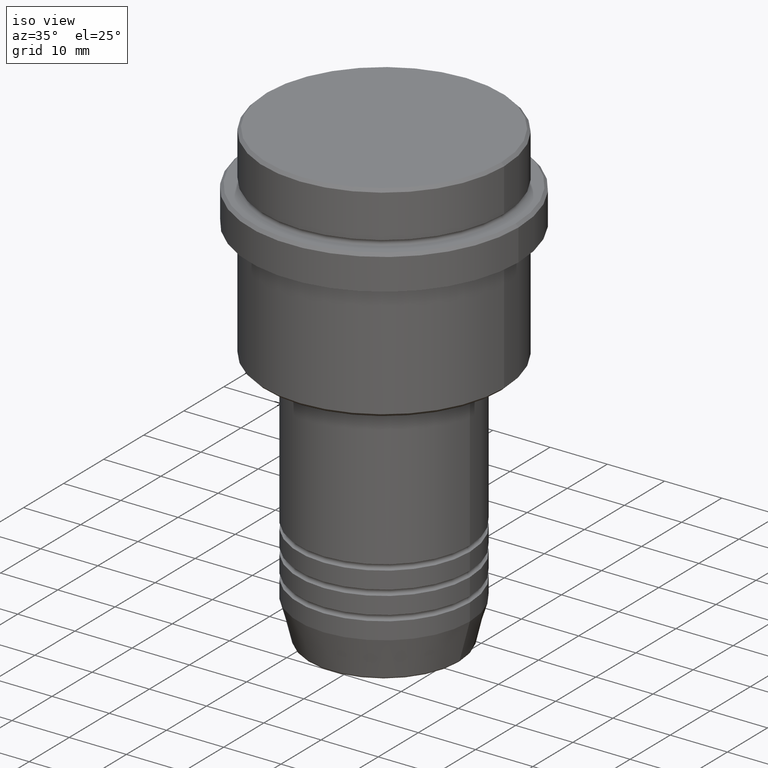
[diagram: clean part render]
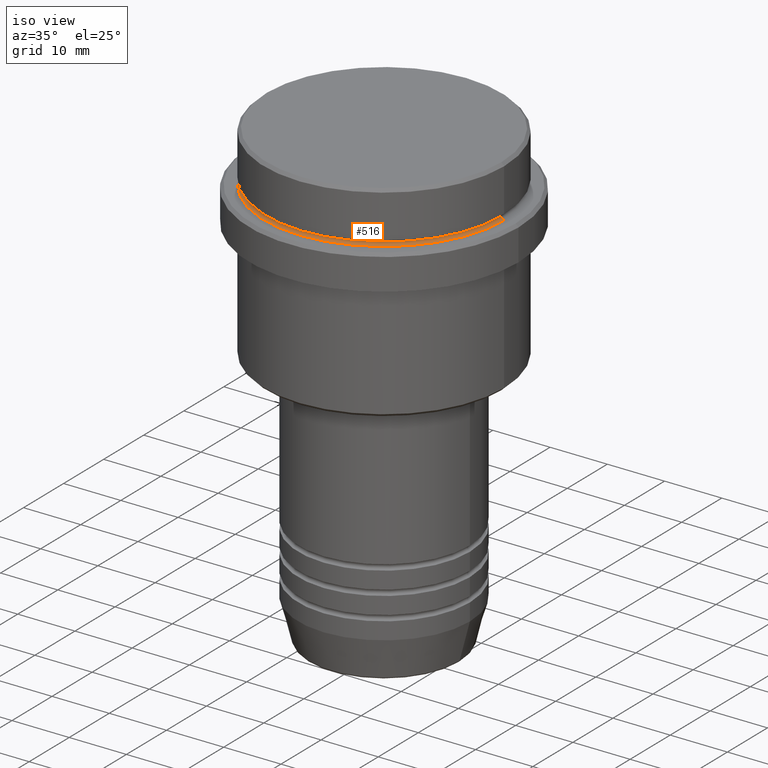
[diagram: same view with one face highlighted and labeled with its STEP entity id]
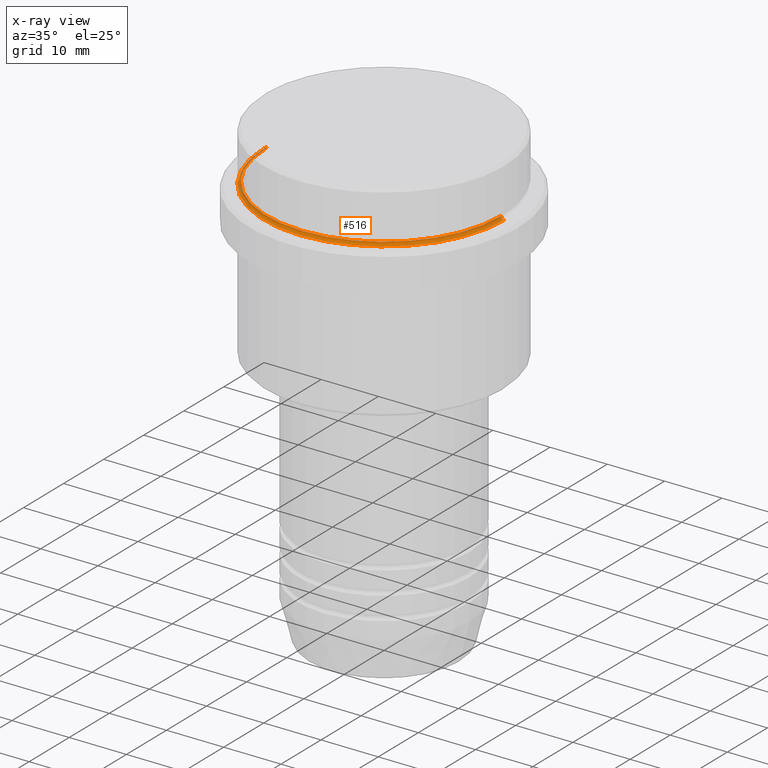
[diagram: x-ray of the same camera — body ghosted, the highlighted face saturated]
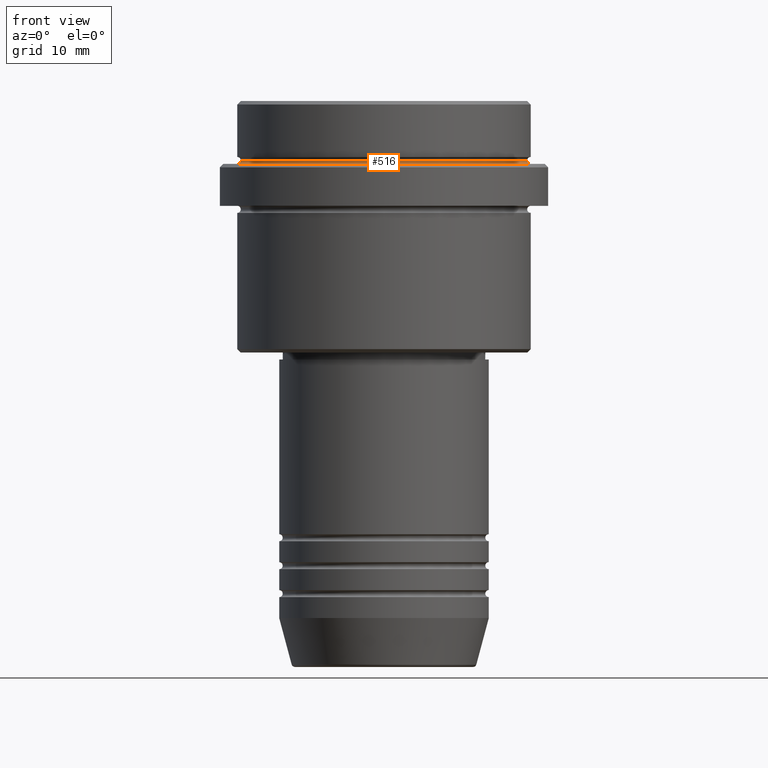
[diagram: same view with one face highlighted and labeled with its STEP entity id]
A machine part, iso view. The second image highlights one B-rep face of the part: STEP entity #516.
The next image is the same camera in x-ray: the body ghosted, the highlighted face saturated — about 3% of this face is hidden behind the body in this view.
A second angle (front view) of the same face is appended — the face is thin or edge-on in the first view.
In plain terms, the highlighted toroidal blend (fillet) surface has major radius 21 mm and minor (blend) radius 0.5 mm.
Its self-contained STEP definition (entity closure, byte-faithful):
#64 = CARTESIAN_POINT ( 'NONE',  ( 0.000000000000000000, 0.000000000000000000, -8.499999999999998224 ) ) ;
#87 = DIRECTION ( 'NONE',  ( -0.000000000000000000, -0.000000000000000000, 1.000000000000000000 ) ) ;
#89 = CARTESIAN_POINT ( 'NONE',  ( 20.49999999999999289, 0.000000000000000000, -8.499999999999998224 ) ) ;
#104 = ORIENTED_EDGE ( 'NONE', *, *, #637, .F. ) ;
#123 = CARTESIAN_POINT ( 'NONE',  ( 20.99999999999999289, 0.000000000000000000, -8.499999999999998224 ) ) ;
#180 = CARTESIAN_POINT ( 'NONE',  ( -20.99999999999999289, 2.571758278209440872E-15, -8.499999999999998224 ) ) ;
#195 = EDGE_CURVE ( 'NONE', #1246, #1317, #501, .T. ) ;
#197 = DIRECTION ( 'NONE',  ( 1.000000000000000000, 0.000000000000000000, 0.000000000000000000 ) ) ;
#220 = CARTESIAN_POINT ( 'NONE',  ( 0.000000000000000000, 0.000000000000000000, -9.000000000000000000 ) ) ;
#277 = CARTESIAN_POINT ( 'NONE',  ( 20.99999999999999289, 0.000000000000000000, -9.000000000000000000 ) ) ;
#304 = EDGE_CURVE ( 'NONE', #1326, #468, #621, .T. ) ;
#346 = AXIS2_PLACEMENT_3D ( 'NONE', #123, #1412, #454 ) ;
#361 = AXIS2_PLACEMENT_3D ( 'NONE', #220, #1213, #1094 ) ;
#363 = CARTESIAN_POINT ( 'NONE',  ( -20.49999999999999289, 2.541142108230757085E-15, -8.499999999999998224 ) ) ;
#377 = DIRECTION ( 'NONE',  ( 1.224646799147353207E-16, 1.000000000000000000, 0.000000000000000000 ) ) ;
#385 = ORIENTED_EDGE ( 'NONE', *, *, #304, .F. ) ;
#454 = DIRECTION ( 'NONE',  ( 0.000000000000000000, 0.000000000000000000, -1.000000000000000000 ) ) ;
#468 = VERTEX_POINT ( 'NONE', #89 ) ;
#501 = CIRCLE ( 'NONE', #361, 20.99999999999999289 ) ;
#516 = ADVANCED_FACE ( 'NONE', ( #1264 ), #896, .F. ) ;
#532 = CIRCLE ( 'NONE', #346, 0.5000000000000004441 ) ;
#621 = CIRCLE ( 'NONE', #878, 20.49999999999999289 ) ;
#637 = EDGE_CURVE ( 'NONE', #468, #1246, #532, .T. ) ;
#642 = ORIENTED_EDGE ( 'NONE', *, *, #195, .F. ) ;
#729 = EDGE_LOOP ( 'NONE', ( #385, #1138, #642, #104 ) ) ;
#749 = EDGE_CURVE ( 'NONE', #1326, #1317, #1195, .T. ) ;
#767 = AXIS2_PLACEMENT_3D ( 'NONE', #64, #1287, #962 ) ;
#793 = DIRECTION ( 'NONE',  ( -1.000000000000000000, 1.224646799147349509E-16, 0.000000000000000000 ) ) ;
#873 = CARTESIAN_POINT ( 'NONE',  ( 0.000000000000000000, 0.000000000000000000, -8.499999999999998224 ) ) ;
#878 = AXIS2_PLACEMENT_3D ( 'NONE', #873, #87, #197 ) ;
#896 = TOROIDAL_SURFACE ( 'NONE', #767, 20.99999999999999289, 0.5000000000000000000 ) ;
#962 = DIRECTION ( 'NONE',  ( 1.000000000000000000, 0.000000000000000000, 0.000000000000000000 ) ) ;
#1035 = CARTESIAN_POINT ( 'NONE',  ( -20.99999999999999289, 2.571758278209440872E-15, -9.000000000000000000 ) ) ;
#1065 = AXIS2_PLACEMENT_3D ( 'NONE', #180, #377, #793 ) ;
#1094 = DIRECTION ( 'NONE',  ( 1.000000000000000000, 0.000000000000000000, 0.000000000000000000 ) ) ;
#1138 = ORIENTED_EDGE ( 'NONE', *, *, #749, .T. ) ;
#1195 = CIRCLE ( 'NONE', #1065, 0.5000000000000004441 ) ;
#1213 = DIRECTION ( 'NONE',  ( 0.000000000000000000, 0.000000000000000000, -1.000000000000000000 ) ) ;
#1246 = VERTEX_POINT ( 'NONE', #277 ) ;
#1264 = FACE_OUTER_BOUND ( 'NONE', #729, .T. ) ;
#1287 = DIRECTION ( 'NONE',  ( -0.000000000000000000, -0.000000000000000000, 1.000000000000000000 ) ) ;
#1317 = VERTEX_POINT ( 'NONE', #1035 ) ;
#1326 = VERTEX_POINT ( 'NONE', #363 ) ;
#1412 = DIRECTION ( 'NONE',  ( 0.000000000000000000, -1.000000000000000000, 0.000000000000000000 ) ) ;